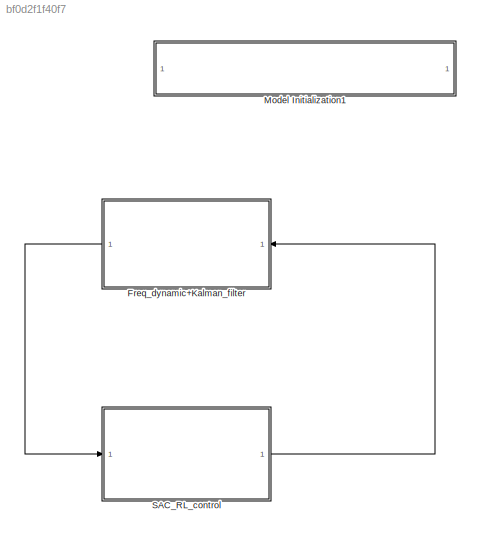
MODEL slx_bf0d2f1f40f7
KIND model
CONFIG AbsTol = auto
CONFIG EnableMultiTasking = off
CONFIG FixedStep = auto
CONFIG InitFcn = M = 4; D = 1.5/100; Rp = 0.05; Tg = 0.2; Ki = 1.8;
CONFIG MaxStep = 1e-3
CONFIG MinStep = auto
CONFIG RelTol = 1e-3
CONFIG SampleTimeConstraint = Unconstrained
CONFIG SolverName = FixedStepAuto
CONFIG StartTime = 0.0
CONFIG StopTime = 100
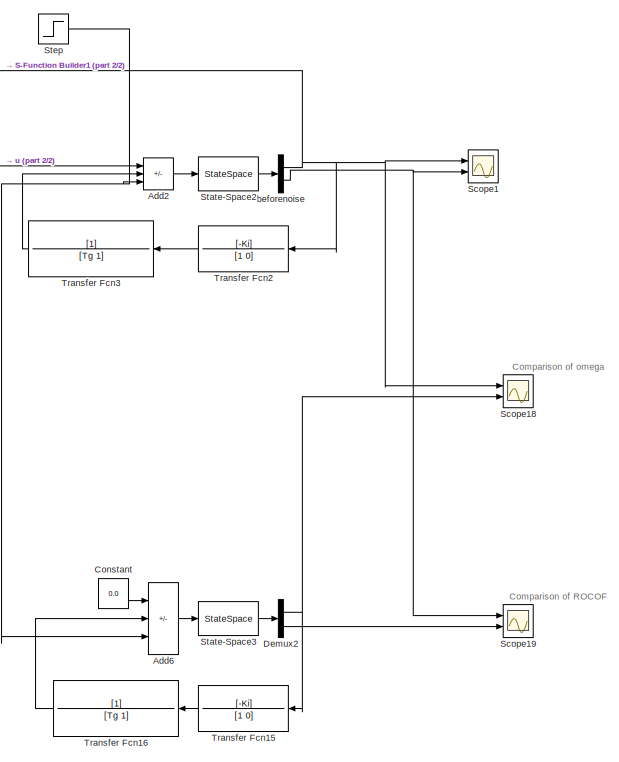
[diagram: Freq_dynamic+Kalman_filter - part 1/2, right side, full height]
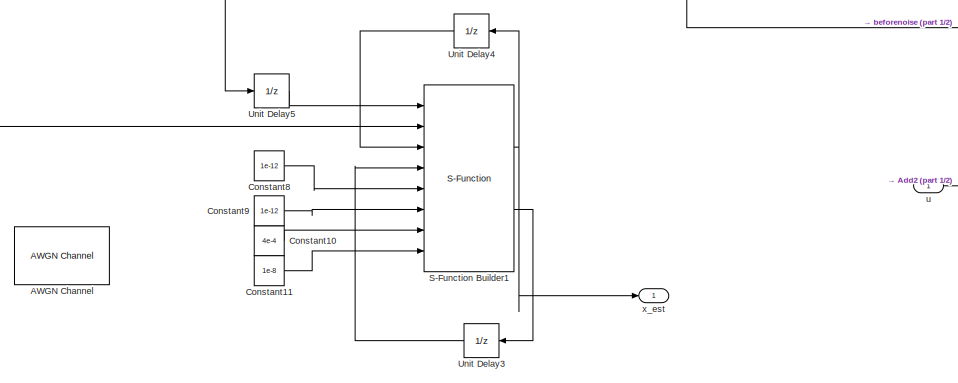
[diagram: Freq_dynamic+Kalman_filter - part 2/2, middle left region]
BLOCK [SubSystem] Freq_dynamic+Kalman_filter
  NameLocation = top
  Ports = [1, 1]
  RequestExecContextInheritance = off
BLOCK [Reference] Freq_dynamic+Kalman_filter/AWGN Channel  REF=commchan3/AWGN
Channel
  Commented = on
  Ports = [1, 1]
  SourceBlock = commchan3/AWGN\nChannel
  SourceProductBaseCode = CM
  SourceType = AWGN Channel
  UserDataPersistent = on
BLOCK [Sum] Freq_dynamic+Kalman_filter/Add2
  IconShape = rectangular
  Inputs = ++-
  Ports = [3, 1]
BLOCK [Sum] Freq_dynamic+Kalman_filter/Add6
  IconShape = rectangular
  Inputs = ++-
  Ports = [3, 1]
BLOCK [Constant] Freq_dynamic+Kalman_filter/Constant
  Value = 0.0
BLOCK [Constant] Freq_dynamic+Kalman_filter/Constant10
  Value = 4e-4
BLOCK [Constant] Freq_dynamic+Kalman_filter/Constant11
  Value = 1e-8
BLOCK [Constant] Freq_dynamic+Kalman_filter/Constant8
  Value = 1e-12
BLOCK [Constant] Freq_dynamic+Kalman_filter/Constant9
  Value = 1e-12
BLOCK [Demux] Freq_dynamic+Kalman_filter/Demux2
  Outputs = 2
  Ports = [1, 2]
BLOCK [S-Function] Freq_dynamic+Kalman_filter/S-Function Builder1
  CopyFcn = set_param(gcbh,'LinkStatus','none')
  EnableBusSupport = off
  FunctionName = KF_Sfun
  InitFcn = try, set_param(gcb,'FunctionName','KF_Sfun'), end
  OpenFcn = sfunctionwizard(gcbh)
  Ports = [8, 2]
  PreSaveFcn = try, set_param(gcb,'FunctionName','KF_Sfun'), end
  SFcnIsStateOwnerBlock = off
  SFunctionDeploymentMode = off
  SFunctionModules = KF_Sfun_wrapper EKF_Func EKF_Func_Call
BLOCK [Scope] Freq_dynamic+Kalman_filter/Scope1
  Floating = off
  NumInputPorts = 2
  Ports = [2]
  ScopeSpecificationString = Simulink.scopes.TimeScopeBlockCfg('CurrentConfiguration', extmgr.ConfigurationSet(extmgr.Configuration('Core','General UI',true),extmgr.Configuration('Core','Source UI',true),extmgr.Configuration('Sources','WiredSimulink',true,'DataLoggingVariableName','ScopeData1'),extmgr.Configuration('Visuals','Time Domain',true,'SerializedDisplays',{struct('MinYLimReal','-0.04429','MaxYLimReal','0.00465','YLab...<+1689ch>
BLOCK [Scope] Freq_dynamic+Kalman_filter/Scope18
  Floating = off
  NumInputPorts = 2
  Ports = [2]
  ScopeSpecificationString = Simulink.scopes.TimeScopeBlockCfg('CurrentConfiguration', extmgr.ConfigurationSet(extmgr.Configuration('Core','General UI',true),extmgr.Configuration('Core','Source UI',true),extmgr.Configuration('Sources','WiredSimulink',true,'DataLoggingVariableName','ScopeData2'),extmgr.Configuration('Visuals','Time Domain',true,'SerializedDisplays',{struct('MinYLimReal','-0.02853','MaxYLimReal','0.00317','YLab...<+1712ch>
BLOCK [Scope] Freq_dynamic+Kalman_filter/Scope19
  Floating = off
  NumInputPorts = 2
  Ports = [2]
  ScopeSpecificationString = Simulink.scopes.TimeScopeBlockCfg('CurrentConfiguration', extmgr.ConfigurationSet(extmgr.Configuration('Core','General UI',true),extmgr.Configuration('Core','Source UI',true),extmgr.Configuration('Sources','WiredSimulink',true,'DataLoggingVariableName','ScopeData3'),extmgr.Configuration('Visuals','Time Domain',true,'SerializedDisplays',{struct('MinYLimReal','-0.06901','MaxYLimReal','0.02073','YLab...<+1690ch>
BLOCK [StateSpace] Freq_dynamic+Kalman_filter/State-Space2
  A = [0 1;-(D/(M*Tg)+1/(Rp*M*Tg)) -(D/M + 1/Tg)]
  B = [0;1/(M*Tg)]
  C = eye(2)
  D = zeros(2,1)
  InitialCondition = 0
  Ports = [1, 1]
BLOCK [StateSpace] Freq_dynamic+Kalman_filter/State-Space3
  A = [0 1;-(D/(M*Tg)+1/(Rp*M*Tg)) -(D/M + 1/Tg)]
  B = [0;1/(M*Tg)]
  C = eye(2)
  D = zeros(2,1)
  InitialCondition = 0
  Ports = [1, 1]
BLOCK [Step] Freq_dynamic+Kalman_filter/Step
  After = 0.44
  SampleTime = 0
BLOCK [TransferFcn] Freq_dynamic+Kalman_filter/Transfer Fcn15
  Denominator = [1 0]
  NameLocation = top
  Numerator = [-Ki]
BLOCK [TransferFcn] Freq_dynamic+Kalman_filter/Transfer Fcn16
  Denominator = [Tg 1]
  NameLocation = top
BLOCK [TransferFcn] Freq_dynamic+Kalman_filter/Transfer Fcn2
  Denominator = [1 0]
  NameLocation = top
  Numerator = [-Ki]
BLOCK [TransferFcn] Freq_dynamic+Kalman_filter/Transfer Fcn3
  Denominator = [Tg 1]
  NameLocation = top
BLOCK [UnitDelay] Freq_dynamic+Kalman_filter/Unit Delay3
  HasFrameUpgradeWarning = on
  InitialCondition = 1*diag([1, 1, 1])
  SampleTime = 0.02
BLOCK [UnitDelay] Freq_dynamic+Kalman_filter/Unit Delay4
  HasFrameUpgradeWarning = on
  SampleTime = 0.02
BLOCK [UnitDelay] Freq_dynamic+Kalman_filter/Unit Delay5
  HasFrameUpgradeWarning = on
  SampleTime = 0.02
BLOCK [Demux] Freq_dynamic+Kalman_filter/beforenoise
  Outputs = 2
  Ports = [1, 2]
BLOCK [Inport] Freq_dynamic+Kalman_filter/u
BLOCK [Outport] Freq_dynamic+Kalman_filter/x_est
BLOCK [SubSystem] Model Initialization1
  CopyFcn = set_param(gcb,'LinkStatus','inactive')
  Ports = []
  RequestExecContextInheritance = off
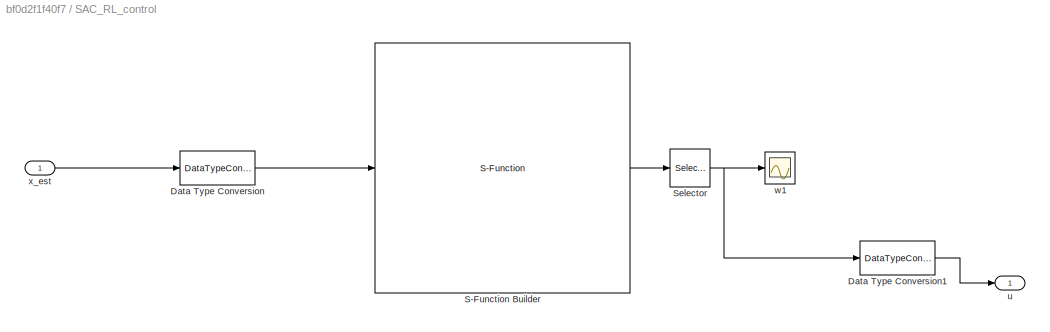
BLOCK [SubSystem] SAC_RL_control
  Ports = [1, 1]
  RequestExecContextInheritance = off
BLOCK [DataTypeConversion] SAC_RL_control/Data Type Conversion
  RndMeth = Floor
  SaturateOnIntegerOverflow = off
BLOCK [DataTypeConversion] SAC_RL_control/Data Type Conversion1
  RndMeth = Floor
  SaturateOnIntegerOverflow = off
BLOCK [S-Function] SAC_RL_control/S-Function Builder
  CopyFcn = set_param(gcbh,'LinkStatus','none')
  EnableBusSupport = off
  FunctionName = SAC_RL_Control
  OpenFcn = sfunctionwizard(gcbh)
  Ports = [1, 1]
  SFcnIsStateOwnerBlock = off
  SFunctionDeploymentMode = off
  SFunctionModules = SAC_RL_Control_wrapper test_call cores layers
BLOCK [Selector] SAC_RL_control/Selector
  IndexOptions = Index vector (dialog)
  Indices = [1]
  InputPortWidth = 256
  OutputSizes = 1
  Ports = [1, 1]
BLOCK [Outport] SAC_RL_control/u
BLOCK [Scope] SAC_RL_control/w1
  Floating = off
  NumInputPorts = 1
  Ports = [1]
  ScopeSpecificationString = Simulink.scopes.TimeScopeBlockCfg('CurrentConfiguration', extmgr.ConfigurationSet(extmgr.Configuration('Core','General UI',true),extmgr.Configuration('Core','Source UI',true),extmgr.Configuration('Sources','WiredSimulink',true,'DataLoggingVariableName','ScopeData1'),extmgr.Configuration('Visuals','Time Domain',true,'SerializedDisplays',{struct('MinYLimReal','-0.06453','MaxYLimReal','0.31729','YLab...<+1422ch>
BLOCK [Inport] SAC_RL_control/x_est
ANNOTATION Freq_dynamic+Kalman_filter: Comparison of ROCOF
ANNOTATION Freq_dynamic+Kalman_filter: Comparison of omega
LINE Freq_dynamic+Kalman_filter/Add2:1 -> Freq_dynamic+Kalman_filter/State-Space2:1
LINE Freq_dynamic+Kalman_filter/Add6:1 -> Freq_dynamic+Kalman_filter/State-Space3:1
LINE Freq_dynamic+Kalman_filter/Constant10:1 -> Freq_dynamic+Kalman_filter/S-Function Builder1:7
LINE Freq_dynamic+Kalman_filter/Constant11:1 -> Freq_dynamic+Kalman_filter/S-Function Builder1:8
LINE Freq_dynamic+Kalman_filter/Constant8:1 -> Freq_dynamic+Kalman_filter/S-Function Builder1:5
LINE Freq_dynamic+Kalman_filter/Constant9:1 -> Freq_dynamic+Kalman_filter/S-Function Builder1:6
LINE Freq_dynamic+Kalman_filter/Constant:1 -> Freq_dynamic+Kalman_filter/Add6:1
NET Freq_dynamic+Kalman_filter/Demux2:1 -> Freq_dynamic+Kalman_filter/Scope18:2, Freq_dynamic+Kalman_filter/Transfer Fcn15:1
LINE Freq_dynamic+Kalman_filter/Demux2:2 -> Freq_dynamic+Kalman_filter/Scope19:2
NET Freq_dynamic+Kalman_filter/S-Function Builder1:1 -> Freq_dynamic+Kalman_filter/Unit Delay4:1, Freq_dynamic+Kalman_filter/x_est:1
LINE Freq_dynamic+Kalman_filter/S-Function Builder1:2 -> Freq_dynamic+Kalman_filter/Unit Delay3:1
LINE Freq_dynamic+Kalman_filter/State-Space2:1 -> Freq_dynamic+Kalman_filter/beforenoise:1
LINE Freq_dynamic+Kalman_filter/State-Space3:1 -> Freq_dynamic+Kalman_filter/Demux2:1
NET Freq_dynamic+Kalman_filter/Step:1 -> Freq_dynamic+Kalman_filter/Add2:3, Freq_dynamic+Kalman_filter/Add6:3
LINE Freq_dynamic+Kalman_filter/Transfer Fcn15:1 -> Freq_dynamic+Kalman_filter/Transfer Fcn16:1
LINE Freq_dynamic+Kalman_filter/Transfer Fcn16:1 -> Freq_dynamic+Kalman_filter/Add6:2
LINE Freq_dynamic+Kalman_filter/Transfer Fcn2:1 -> Freq_dynamic+Kalman_filter/Transfer Fcn3:1
LINE Freq_dynamic+Kalman_filter/Transfer Fcn3:1 -> Freq_dynamic+Kalman_filter/Add2:2
LINE Freq_dynamic+Kalman_filter/Unit Delay3:1 -> Freq_dynamic+Kalman_filter/S-Function Builder1:4
LINE Freq_dynamic+Kalman_filter/Unit Delay4:1 -> Freq_dynamic+Kalman_filter/S-Function Builder1:3
LINE Freq_dynamic+Kalman_filter/Unit Delay5:1 -> Freq_dynamic+Kalman_filter/S-Function Builder1:1
NET Freq_dynamic+Kalman_filter/beforenoise:1 -> Freq_dynamic+Kalman_filter/S-Function Builder1:2, Freq_dynamic+Kalman_filter/Scope18:1, Freq_dynamic+Kalman_filter/Scope1:1, Freq_dynamic+Kalman_filter/Transfer Fcn2:1
NET Freq_dynamic+Kalman_filter/beforenoise:2 -> Freq_dynamic+Kalman_filter/Scope19:1, Freq_dynamic+Kalman_filter/Scope1:2
NET Freq_dynamic+Kalman_filter/u:1 -> Freq_dynamic+Kalman_filter/Add2:1, Freq_dynamic+Kalman_filter/Unit Delay5:1
LINE Freq_dynamic+Kalman_filter:1 -> SAC_RL_control:1
LINE SAC_RL_control/Data Type Conversion1:1 -> SAC_RL_control/u:1
LINE SAC_RL_control/Data Type Conversion:1 -> SAC_RL_control/S-Function Builder:1
LINE SAC_RL_control/S-Function Builder:1 -> SAC_RL_control/Selector:1
NET SAC_RL_control/Selector:1 -> SAC_RL_control/Data Type Conversion1:1, SAC_RL_control/w1:1
LINE SAC_RL_control/x_est:1 -> SAC_RL_control/Data Type Conversion:1
LINE SAC_RL_control:1 -> Freq_dynamic+Kalman_filter:1
note: NET lines group one-source signal fan-out (src -> all destinations, sorted); 1:1 wires keep LINE
